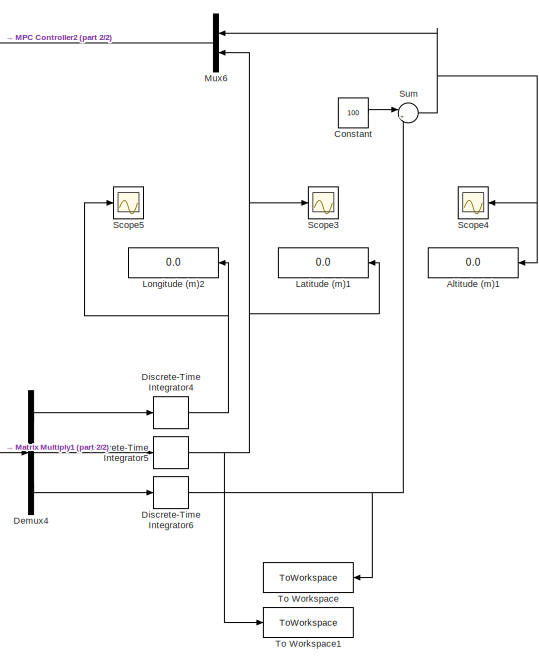
[diagram: root canvas - part 1/2, right side, full height]
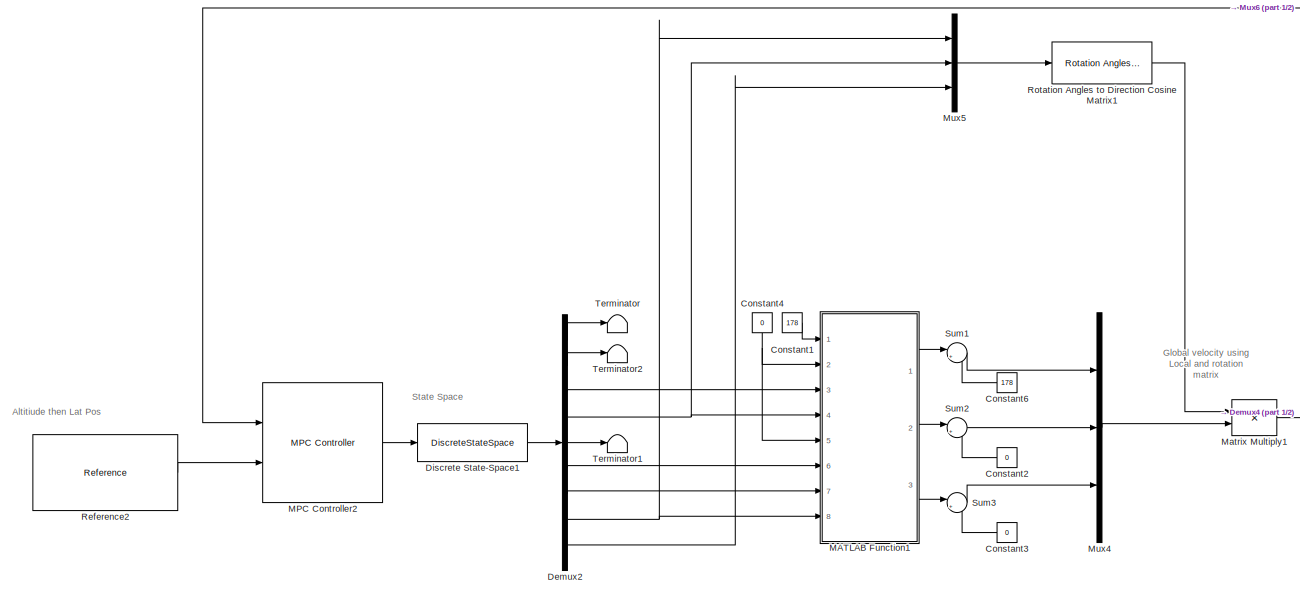
[diagram: root canvas - part 2/2, left side, full height]
MODEL slx_f29c0d477a6b
KIND model
CONFIG AbsTol = auto
CONFIG EnableMultiTasking = off
CONFIG FixedStep = auto
CONFIG MaxStep = auto
CONFIG MinStep = auto
CONFIG RelTol = 1e-3
CONFIG SampleTimeConstraint = Unconstrained
CONFIG SolverName = VariableStepAuto
CONFIG StartTime = 0.0
CONFIG StopTime = 20
BLOCK [Display] Altitude (m)1
  Decimation = 1
  NameLocation = top
  Ports = [1]
BLOCK [Constant] Constant
  Value = 100
BLOCK [Constant] Constant1
  Value = 178
BLOCK [Constant] Constant2
  NameLocation = top
  Value = 0
BLOCK [Constant] Constant3
  NameLocation = top
  Value = 0
BLOCK [Constant] Constant4
  NameLocation = left
  Value = 0
BLOCK [Constant] Constant6
  NameLocation = top
  Value = 178
BLOCK [Demux] Demux2
  Outputs = 9
  Ports = [1, 9]
BLOCK [Demux] Demux4
  Outputs = 3
  Ports = [1, 3]
BLOCK [DiscreteStateSpace] Discrete State-Space1
  A = [1.0000    0.0001   -0.2905   -0.0968         0         0         0         0         0;\n   -0.0007    0.9970    1.7422   -0.0159         0         0         0         0         0;\n    0.0000   -0.0001    0.9955    0.0000         0         0         0         0         0;\n    0.0000   -0.0000    0.0100    1.0000         0         0         0         0         0;\n         0         0         0     ...<+425ch>
  B = [0.0175         0         0;\n   -0.1055         0         0;\n   -0.0488         0         0;\n   -0.0002         0         0;\n         0    0.0034    0.0331;\n         0    0.0468    0.0077;\n         0    0.0009   -0.0136;\n         0    0.0002    0.0000;\n         0    0.0000   -0.0001];
  C = [1     0     0     0     0     0     0     0     0;\n     0     1     0     0     0     0     0     0     0;\n     0     0     1     0     0     0     0     0     0;\n     0     0     0     1     0     0     0     0     0;\n     0     0     0     0     1     0     0     0     0;\n     0     0     0     0     0     1     0     0     0;\n     0     0     0     0     0     0     1     0     0;\n     0     0...<+100ch>
  D = [0     0     0;\n     0     0     0;\n     0     0     0;\n     0     0     0;\n     0     0     0;\n     0     0     0;\n     0     0     0;\n     0     0     0;\n     0     0     0];
  SampleTime = -1
BLOCK [DiscreteIntegrator] Discrete-Time Integrator4
  ICPrevOutput = DiscIntNeverNeededParam
  ICPrevScaledInput = DiscIntNeverNeededParam
  InitialConditionSetting = Auto
  Ports = [1, 1]
  SampleTime = -1
BLOCK [DiscreteIntegrator] Discrete-Time Integrator5
  ICPrevOutput = DiscIntNeverNeededParam
  ICPrevScaledInput = DiscIntNeverNeededParam
  InitialConditionSetting = Auto
  Ports = [1, 1]
  SampleTime = -1
BLOCK [DiscreteIntegrator] Discrete-Time Integrator6
  ICPrevOutput = DiscIntNeverNeededParam
  ICPrevScaledInput = DiscIntNeverNeededParam
  InitialConditionSetting = Auto
  Ports = [1, 1]
  SampleTime = -1
BLOCK [Display] Latitude (m)1
  Decimation = 1
  NameLocation = top
  Ports = [1]
BLOCK [Display] Longitude (m)2
  Decimation = 1
  NameLocation = top
  Ports = [1]
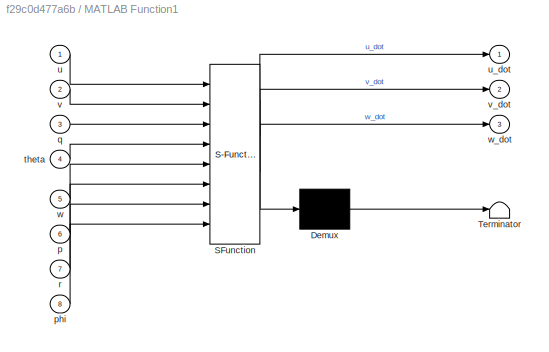
BLOCK [SubSystem] MATLAB Function1
  ErrorFcn = Stateflow.Translate.translate
  PermitHierarchicalResolution = ExplicitOnly
  Ports = [8, 3]
  RequestExecContextInheritance = off
  SFBlockType = MATLAB Function
  TreatAsAtomicUnit = on
BLOCK [Demux] MATLAB Function1/ Demux 
  Outputs = 1
  Ports = [1, 1]
BLOCK [S-Function] MATLAB Function1/ SFunction 
  EnableBusSupport = on
  FunctionName = sf_sfun
  PortCounts = [8 4]
  Ports = [8, 4]
  SFcnIsStateOwnerBlock = off
  SFunctionDeploymentMode = off
  Tag = Stateflow S-Function 1
BLOCK [Terminator] MATLAB Function1/ Terminator 
BLOCK [Inport] MATLAB Function1/p
  Port = 6
BLOCK [Inport] MATLAB Function1/phi
  Port = 8
BLOCK [Inport] MATLAB Function1/q
  Port = 3
BLOCK [Inport] MATLAB Function1/r
  Port = 7
BLOCK [Inport] MATLAB Function1/theta
  Port = 4
BLOCK [Inport] MATLAB Function1/u
BLOCK [Outport] MATLAB Function1/u_dot
BLOCK [Inport] MATLAB Function1/v
  Port = 2
BLOCK [Outport] MATLAB Function1/v_dot
  Port = 2
BLOCK [Inport] MATLAB Function1/w
  Port = 5
BLOCK [Outport] MATLAB Function1/w_dot
  Port = 3
BLOCK [Reference] MPC Controller2  REF=mpclib/MPC Controller  (lib defined in mdl_ae329e0e0455)
  Ports = [2, 1]
  SCDEnableBlockLinearizationSpecification = on
  SourceBlock = mpclib/MPC Controller
  SourceProductBaseCode = MP
  SourceType = MPC
BLOCK [Product] Matrix Multiply1
  Multiplication = Matrix(*)
  Ports = [2, 1]
BLOCK [Mux] Mux4
  DisplayOption = bar
  Inputs = 3
  Ports = [3, 1]
BLOCK [Mux] Mux5
  DisplayOption = bar
  Inputs = 3
  Ports = [3, 1]
BLOCK [Mux] Mux6
  DisplayOption = bar
  Inputs = 2
  NameLocation = top
  Ports = [2, 1]
BLOCK [Reference] Reference2  REF=Library/Reference
  Ports = [0, 1]
  SourceBlock = Library/Reference
BLOCK [Reference] Rotation Angles to Direction Cosine Matrix1  REF=sharedtransform/Rotation Angles to
Direction Cosine Matrix
  AttributesFormatString = Rotation Order: %<rotationOrder>
  Ports = [1, 1]
  SourceBlock = sharedtransform/Rotation Angles to\nDirection Cosine Matrix
  SourceProductBaseCode = AE,PW,MT,UV,VE,VP
  SourceType = Ang2DCM
BLOCK [Scope] Scope3
  Floating = off
  NumInputPorts = 1
  Ports = [1]
  ScopeSpecificationString = Simulink.scopes.TimeScopeBlockCfg('CurrentConfiguration', extmgr.ConfigurationSet(extmgr.Configuration('Core','General UI',true),extmgr.Configuration('Core','Source UI',true),extmgr.Configuration('Sources','WiredSimulink',true,'DataLoggingVariableName','ScopeData3'),extmgr.Configuration('Visuals','Time Domain',true,'SerializedDisplays',{struct('MinYLimReal','-8.46981','MaxYLimReal','76.22832','YLa...<+1436ch>
BLOCK [Scope] Scope4
  Floating = off
  NameLocation = top
  NumInputPorts = 1
  Ports = [1]
  ScopeSpecificationString = Simulink.scopes.TimeScopeBlockCfg('CurrentConfiguration', extmgr.ConfigurationSet(extmgr.Configuration('Core','General UI',true),extmgr.Configuration('Core','Source UI',true),extmgr.Configuration('Sources','WiredSimulink',true,'DataLoggingVariableName','ScopeData4'),extmgr.Configuration('Visuals','Time Domain',true,'SerializedDisplays',{struct('MinYLimReal','74.2819','MaxYLimReal','331.3491','YLab...<+1416ch>
BLOCK [Scope] Scope5
  Floating = off
  NumInputPorts = 1
  Ports = [1]
  ScopeSpecificationString = Simulink.scopes.TimeScopeBlockCfg('CurrentConfiguration', extmgr.ConfigurationSet(extmgr.Configuration('Core','General UI',true),extmgr.Configuration('Core','Source UI',true),extmgr.Configuration('Sources','WiredSimulink',true,'DataLoggingVariableName','ScopeData1'),extmgr.Configuration('Visuals','Time Domain',true,'SerializedDisplays',{struct('MinYLimReal','-442.99208','MaxYLimReal','3986.9287','...<+1446ch>
BLOCK [Sum] Sum
  Inputs = |++
  Ports = [2, 1]
BLOCK [Sum] Sum1
  Inputs = |++
  Ports = [2, 1]
BLOCK [Sum] Sum2
  Inputs = |++
  Ports = [2, 1]
BLOCK [Sum] Sum3
  Inputs = |++
  Ports = [2, 1]
BLOCK [Terminator] Terminator
BLOCK [Terminator] Terminator1
BLOCK [Terminator] Terminator2
BLOCK [ToWorkspace] To Workspace
  FixptAsFi = on
  MaxDataPoints = inf
  NameLocation = top
  Ports = [1]
  SampleTime = -1
  VariableName = sim_alt
BLOCK [ToWorkspace] To Workspace1
  FixptAsFi = on
  MaxDataPoints = inf
  Ports = [1]
  SampleTime = -1
  VariableName = sim_lat
ANNOTATION (root): Global velocity using Local and rotation matrix
ANNOTATION (root): State Space
ANNOTATION (root): Altitiude then Lat Pos
LINE Constant1:1 -> MATLAB Function1:1
LINE Constant2:1 -> Sum2:2
LINE Constant3:1 -> Sum3:2
NET Constant4:1 -> MATLAB Function1:2, MATLAB Function1:5
LINE Constant6:1 -> Sum1:2
LINE Constant:1 -> Sum:1
LINE Demux2:1 -> Terminator:1
LINE Demux2:2 -> Terminator2:1
LINE Demux2:3 -> MATLAB Function1:3
NET Demux2:4 -> MATLAB Function1:4, Mux5:2
LINE Demux2:5 -> Terminator1:1
LINE Demux2:6 -> MATLAB Function1:6
LINE Demux2:7 -> MATLAB Function1:7
NET Demux2:8 -> MATLAB Function1:8, Mux5:1
LINE Demux2:9 -> Mux5:3
LINE Demux4:1 -> Discrete-Time Integrator4:1
LINE Demux4:2 -> Discrete-Time Integrator5:1
LINE Demux4:3 -> Discrete-Time Integrator6:1
LINE Discrete State-Space1:1 -> Demux2:1
NET Discrete-Time Integrator4:1 -> Longitude (m)2:1, Scope5:1
NET Discrete-Time Integrator5:1 -> Latitude (m)1:1, Mux6:2, Scope3:1, To Workspace1:1
NET Discrete-Time Integrator6:1 -> Sum:2, To Workspace:1
LINE MATLAB Function1:1 -> Sum1:1
LINE MATLAB Function1:2 -> Sum2:1
LINE MATLAB Function1:3 -> Sum3:1
LINE MPC Controller2:1 -> Discrete State-Space1:1
LINE Matrix Multiply1:1 -> Demux4:1
LINE Mux4:1 -> Matrix Multiply1:2
LINE Mux5:1 -> Rotation Angles to Direction Cosine Matrix1:1
LINE Mux6:1 -> MPC Controller2:1
LINE Reference2:1 -> MPC Controller2:2
LINE Rotation Angles to Direction Cosine Matrix1:1 -> Matrix Multiply1:1
LINE Sum1:1 -> Mux4:1
LINE Sum2:1 -> Mux4:2
LINE Sum3:1 -> Mux4:3
NET Sum:1 -> Altitude (m)1:1, Mux6:1, Scope4:1
note: NET lines group one-source signal fan-out (src -> all destinations, sorted); 1:1 wires keep LINE
CHART MATLAB Function1 states=1 transitions=1
  STATE_LABEL 'eML_blk_kernel()'
  STATE_LABEL 'SCRIPT:\nfunction [u_dot, v_dot, w_dot] = fcn(u, v, q, theta, w,  p, r, phi )\n\nX = 18825*0.86 - ((.047*.3809*178^2*49.239)/2) / 8.58; % thrust - drag \nZ = (.047*.3809*178^2*49.239) / 2 - 18825;% lift - weight\nY =  Z*sin(-.005078); % lateral force\n\nu_dot = (X/17642 - 9.81*sin(theta) + r*v - q*w )*.01;\n\nv_dot = (Y/17642 - 9.81*sin(phi)*cos(theta) - r*u + q*w)*.01 ;\n\nw_dot = (Z/17642 - 9.81*cos(phi)*c...<+29ch>'
CHART  states=0 transitions=0
